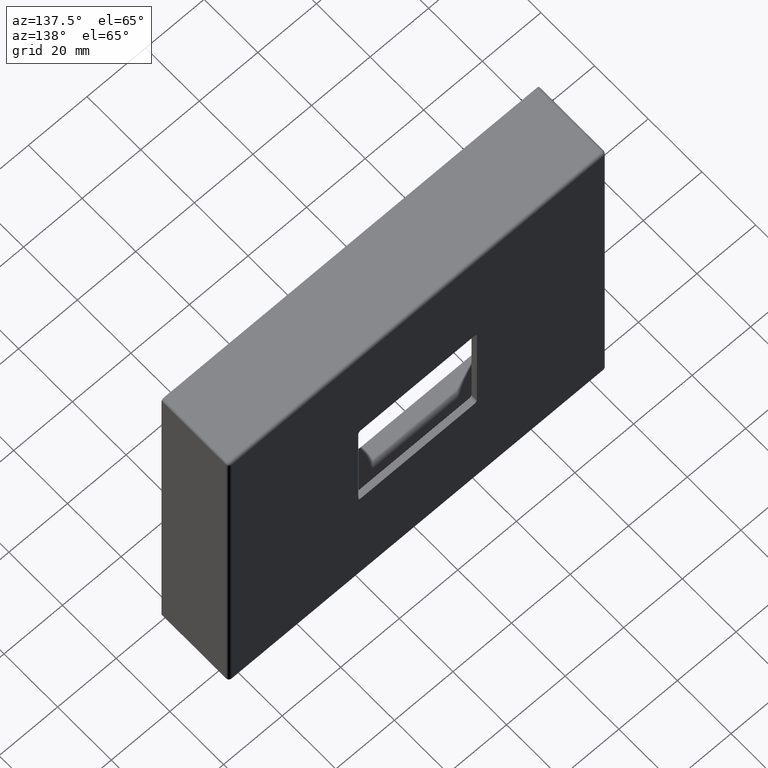
[diagram: clean part render]
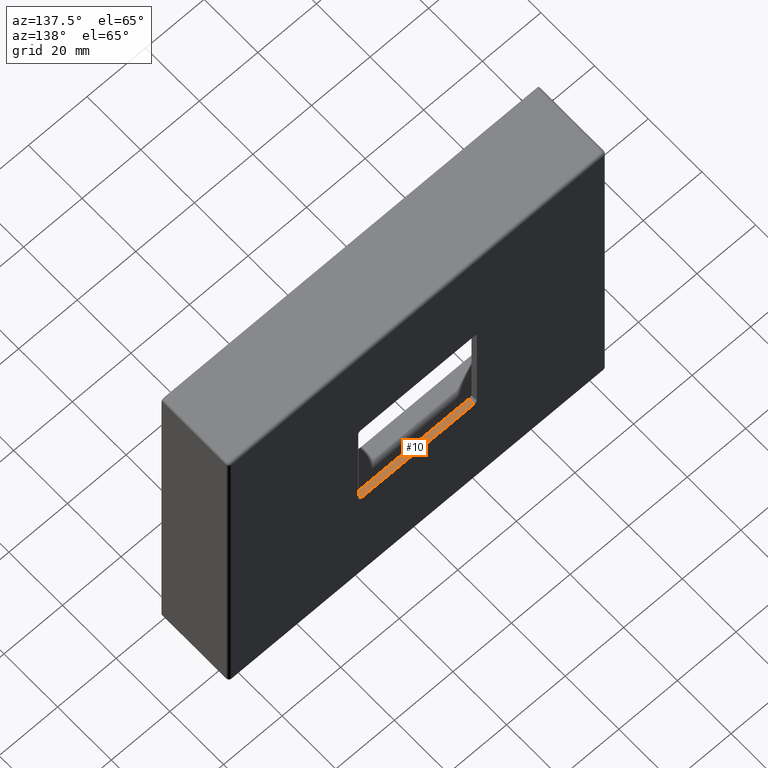
[diagram: same view with one face highlighted and labeled with its STEP entity id]
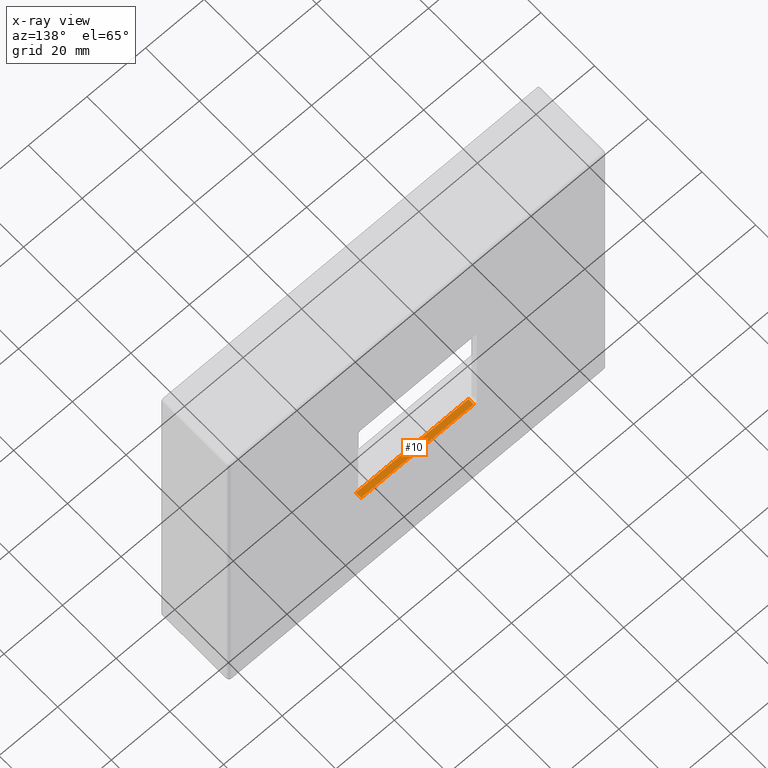
[diagram: x-ray of the same camera — body ghosted, the highlighted face saturated]
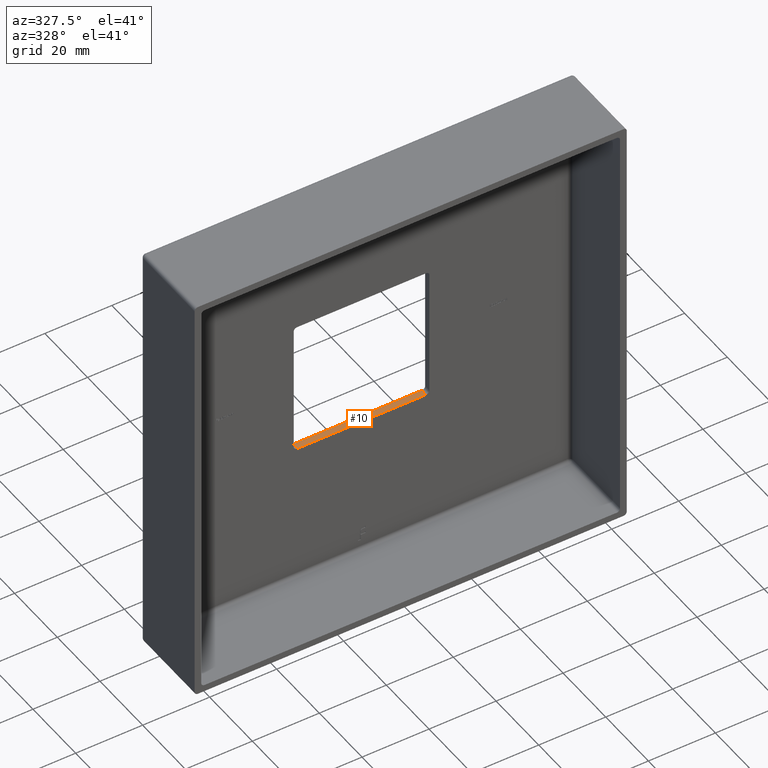
[diagram: same view with one face highlighted and labeled with its STEP entity id]
A machine part, auxiliary view. The second image highlights one B-rep face of the part: STEP entity #10.
The next image is the same camera in x-ray: the body ghosted, the highlighted face saturated — about 0% of this face is hidden behind the body in this view.
A second angle (auxiliary view) of the same face is appended — the face is thin or edge-on in the first view.
In plain terms, the highlighted planar face has unit normal (0, 0, -1).
Its self-contained STEP definition (entity closure, byte-faithful):
#10 = ADVANCED_FACE ( 'NONE', ( #14608 ), #7908, .F. ) ;
#392 = AXIS2_PLACEMENT_3D ( 'NONE', #5732, #10331, #14863 ) ;
#428 = EDGE_LOOP ( 'NONE', ( #12232, #14634, #6390, #11804 ) ) ;
#925 = EDGE_CURVE ( 'NONE', #14409, #8559, #10427, .T. ) ;
#1998 = VECTOR ( 'NONE', #11695, 1000.000000000000000 ) ;
#2347 = VECTOR ( 'NONE', #10776, 1000.000000000000000 ) ;
#3850 = CARTESIAN_POINT ( 'NONE',  ( -19.25000000000000000, 23.00000000000000000, -20.25000000000000000 ) ) ;
#4605 = CARTESIAN_POINT ( 'NONE',  ( 19.25000000000000711, 23.00000000000000000, -20.25000000000000000 ) ) ;
#5245 = VERTEX_POINT ( 'NONE', #5427 ) ;
#5283 = VERTEX_POINT ( 'NONE', #6423 ) ;
#5409 = LINE ( 'NONE', #13023, #2347 ) ;
#5427 = CARTESIAN_POINT ( 'NONE',  ( -19.25000000000000000, 23.00000000000000000, -20.25000000000000000 ) ) ;
#5732 = CARTESIAN_POINT ( 'NONE',  ( -20.25000000000000000, 0.000000000000000000, -20.25000000000000000 ) ) ;
#5864 = EDGE_CURVE ( 'NONE', #5283, #5245, #10242, .T. ) ;
#6106 = LINE ( 'NONE', #13758, #13282 ) ;
#6117 = VECTOR ( 'NONE', #13695, 1000.000000000000000 ) ;
#6390 = ORIENTED_EDGE ( 'NONE', *, *, #7282, .T. ) ;
#6423 = CARTESIAN_POINT ( 'NONE',  ( -19.25000000000000000, 25.00000000000000000, -20.25000000000000000 ) ) ;
#6791 = CARTESIAN_POINT ( 'NONE',  ( 19.25000000000000711, 25.00000000000000000, -20.25000000000000000 ) ) ;
#6918 = EDGE_CURVE ( 'NONE', #14409, #5245, #5409, .T. ) ;
#7282 = EDGE_CURVE ( 'NONE', #8559, #5283, #6106, .T. ) ;
#7908 = PLANE ( 'NONE',  #392 ) ;
#8559 = VERTEX_POINT ( 'NONE', #6791 ) ;
#9272 = DIRECTION ( 'NONE',  ( -1.000000000000000000, -0.000000000000000000, -0.000000000000000000 ) ) ;
#9358 = CARTESIAN_POINT ( 'NONE',  ( 19.25000000000000711, 25.00000000000000000, -20.25000000000000000 ) ) ;
#10242 = LINE ( 'NONE', #3850, #1998 ) ;
#10331 = DIRECTION ( 'NONE',  ( 0.000000000000000000, 0.000000000000000000, -1.000000000000000000 ) ) ;
#10427 = LINE ( 'NONE', #9358, #6117 ) ;
#10776 = DIRECTION ( 'NONE',  ( -1.000000000000000000, 0.000000000000000000, 0.000000000000000000 ) ) ;
#11695 = DIRECTION ( 'NONE',  ( 0.000000000000000000, -1.000000000000000000, -0.000000000000000000 ) ) ;
#11804 = ORIENTED_EDGE ( 'NONE', *, *, #5864, .T. ) ;
#12232 = ORIENTED_EDGE ( 'NONE', *, *, #6918, .F. ) ;
#13023 = CARTESIAN_POINT ( 'NONE',  ( 0.000000000000000000, 23.00000000000000000, -20.25000000000000000 ) ) ;
#13282 = VECTOR ( 'NONE', #9272, 1000.000000000000000 ) ;
#13695 = DIRECTION ( 'NONE',  ( -0.000000000000000000, 1.000000000000000000, 0.000000000000000000 ) ) ;
#13758 = CARTESIAN_POINT ( 'NONE',  ( -20.25000000000000000, 25.00000000000000000, -20.25000000000000000 ) ) ;
#14409 = VERTEX_POINT ( 'NONE', #4605 ) ;
#14608 = FACE_OUTER_BOUND ( 'NONE', #428, .T. ) ;
#14634 = ORIENTED_EDGE ( 'NONE', *, *, #925, .T. ) ;
#14863 = DIRECTION ( 'NONE',  ( -1.000000000000000000, 0.000000000000000000, -0.000000000000000000 ) ) ;